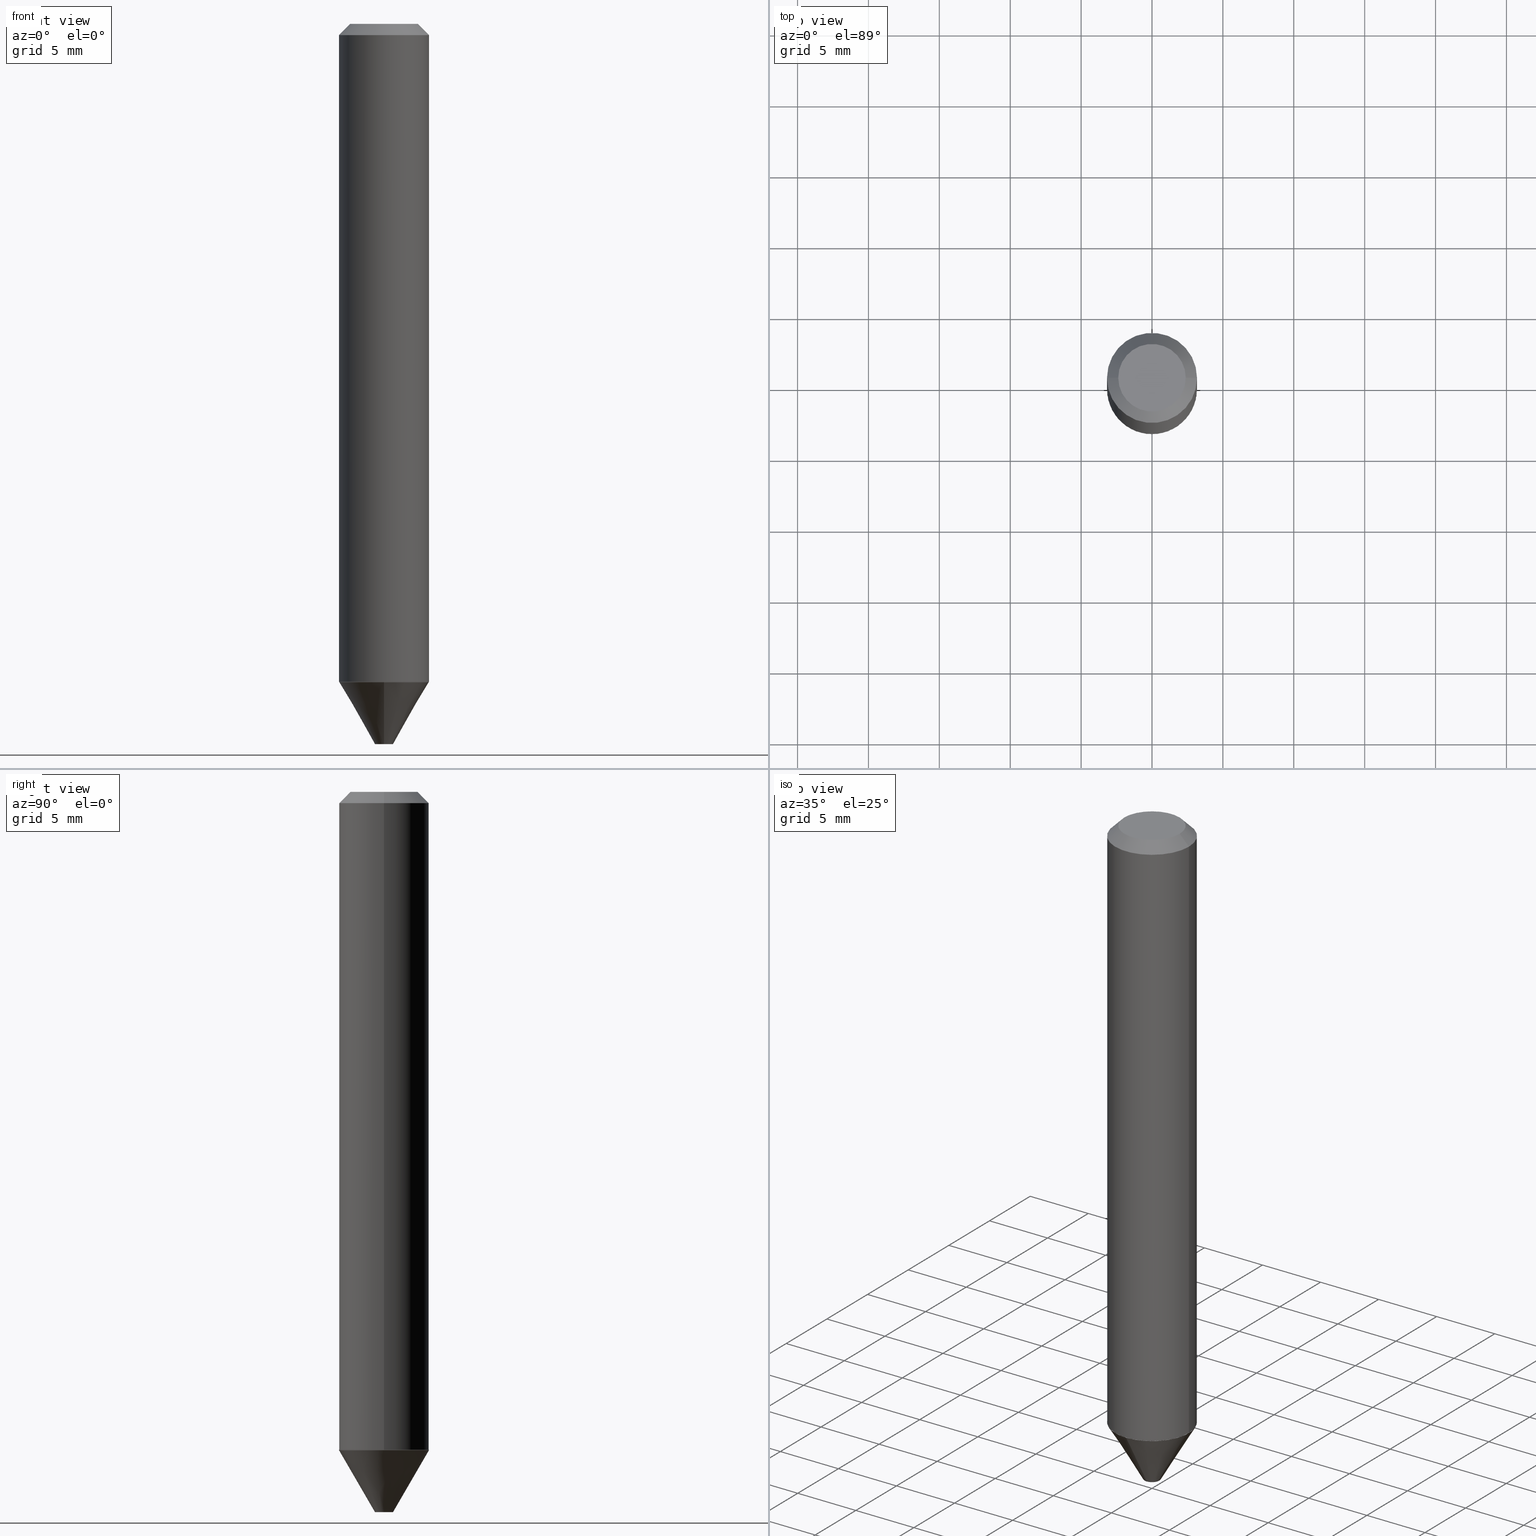
[diagram: canonical four-view strip — front | top / right | iso, engineering-drawing reading convention]
A machine part, canonical four-view strip (front | top / right | iso — engineering-drawing reading convention). The complete STEP part file that produces these views, byte-faithful:
ISO-10303-21;
HEADER;
FILE_DESCRIPTION (( 'STEP AP203' ),
    '1' );
FILE_NAME ('74055.STEP',
    '2025-06-20T12:14:28',
    ( '' ),
    ( '' ),
    'SwSTEP 2.0',
    'SolidWorks 2024',
    '' );
FILE_SCHEMA (( 'CONFIG_CONTROL_DESIGN' ));
ENDSEC;

DATA;
#1 = CARTESIAN_POINT ( 'NONE',  ( 7.642090019328604414E-31, -1.091087918388490513E-16, -0.03125000000000021511 ) ) ;
#2 = VECTOR ( 'NONE', #60, 39.37007874015748143 ) ;
#3 = ADVANCED_FACE ( 'NONE', ( #176 ), #116, .F. ) ;
#4 = EDGE_CURVE ( 'NONE', #135, #43, #40, .T. ) ;
#5 = DIRECTION ( 'NONE',  ( -2.445468806185136597E-29, 3.491481338843145583E-15, 1.000000000000000000 ) ) ;
#6 = EDGE_CURVE ( 'NONE', #268, #169, #108, .T. ) ;
#7 = CONICAL_SURFACE ( 'NONE', #138, 0.1250000000000001665, 0.5261096427181406465 ) ;
#8 = LOCAL_TIME ( 8, 14, 28.00000000000000000, #137 ) ;
#9 = PERSON_AND_ORGANIZATION ( #407, #59 ) ;
#10 = ORIENTED_EDGE ( 'NONE', *, *, #352, .F. ) ;
#11 = DIRECTION ( 'NONE',  ( -2.445468806185136597E-29, 3.491481338843145583E-15, 1.000000000000000000 ) ) ;
#12 = AXIS2_PLACEMENT_3D ( 'NONE', #314, #144, #270 ) ;
#13 = AXIS2_PLACEMENT_3D ( 'NONE', #408, #248, #80 ) ;
#14 = ORIENTED_EDGE ( 'NONE', *, *, #283, .F. ) ;
#15 = ADVANCED_FACE ( 'NONE', ( #405 ), #77, .T. ) ;
#16 = DIRECTION ( 'NONE',  ( -2.445468806185136597E-29, 3.491481338843145583E-15, 1.000000000000000000 ) ) ;
#17 = EDGE_CURVE ( 'NONE', #261, #376, #155, .T. ) ;
#18 = ORIENTED_EDGE ( 'NONE', *, *, #71, .T. ) ;
#19 = APPROVAL_DATE_TIME ( #68, #106 ) ;
#20 = LOCAL_TIME ( 8, 14, 28.00000000000000000, #100 ) ;
#21 = LINE ( 'NONE', #109, #216 ) ;
#22 = CARTESIAN_POINT ( 'NONE',  ( 0.1245000000000002632, -7.249344964472156868E-15, -1.827294919243111160 ) ) ;
#23 = DIRECTION ( 'NONE',  ( 1.000000000000000000, -6.982962677686266711E-15, 4.876176775795935232E-29 ) ) ;
#24 = APPLICATION_CONTEXT ( 'configuration controlled 3d designs of mechanical parts and assemblies' ) ;
#25 = DIRECTION ( 'NONE',  ( 4.937700262164547253E-15, 0.7071067811865450192, -0.7071067811865499042 ) ) ;
#26 = EDGE_CURVE ( 'NONE', #186, #169, #21, .T. ) ;
#27 = DIRECTION ( 'NONE',  ( -2.445468806185136597E-29, 3.491481338843145583E-15, 1.000000000000000000 ) ) ;
#28 = FACE_OUTER_BOUND ( 'NONE', #209, .T. ) ;
#29 = CIRCLE ( 'NONE', #372, 0.1244999999999999996 ) ;
#30 = CARTESIAN_POINT ( 'NONE',  ( 4.468592724709616845E-29, -6.379966111100216537E-15, -1.827294919243111382 ) ) ;
#31 = DIRECTION ( 'NONE',  ( 0.000000000000000000, 0.000000000000000000, 1.000000000000000000 ) ) ;
#32 = EDGE_CURVE ( 'NONE', #184, #198, #354, .T. ) ;
#33 = DIRECTION ( 'NONE',  ( 2.438655808620039328E-29, -3.501237939128104432E-15, -1.000000000000000000 ) ) ;
#34 = CONICAL_SURFACE ( 'NONE', #201, 0.1250000000000001665, 0.5261096427181406465 ) ;
#35 =( CONVERSION_BASED_UNIT ( 'INCH', #326 ) LENGTH_UNIT ( ) NAMED_UNIT ( #112 ) );
#36 = CARTESIAN_POINT ( 'NONE',  ( 0.1250000000000000000, -9.666710415602905459E-16, -0.03125000000000021511 ) ) ;
#37 = CC_DESIGN_PERSON_AND_ORGANIZATION_ASSIGNMENT ( #368, #172, ( #394 ) ) ;
#38 =( NAMED_UNIT ( * ) PLANE_ANGLE_UNIT ( ) SI_UNIT ( $, .RADIAN. ) );
#39 = PRODUCT_DEFINITION_SHAPE ( 'NONE', 'NONE',  #394 ) ;
#40 = CIRCLE ( 'NONE', #12, 0.1244999999999999996 ) ;
#41 = APPROVAL_STATUS ( 'not_yet_approved' ) ;
#42 = ADVANCED_FACE ( 'NONE', ( #49 ), #223, .T. ) ;
#43 = VERTEX_POINT ( 'NONE', #82 ) ;
#44 = DATE_TIME_ROLE ( 'creation_date' ) ;
#45 = ORIENTED_EDGE ( 'NONE', *, *, #211, .T. ) ;
#46 = EDGE_CURVE ( 'NONE', #198, #186, #146, .T. ) ;
#47 = DIRECTION ( 'NONE',  ( -2.438655808620039047E-29, 3.501237939128104827E-15, 1.000000000000000000 ) ) ;
#48 = ADVANCED_FACE ( 'NONE', ( #371 ), #7, .T. ) ;
#49 = FACE_OUTER_BOUND ( 'NONE', #235, .T. ) ;
#50 = CARTESIAN_POINT ( 'NONE',  ( 8.693788533719847051E-16, 0.1244999999999936158, -1.827294919243111826 ) ) ;
#51 = VERTEX_POINT ( 'NONE', #412 ) ;
#52 = DIRECTION ( 'NONE',  ( 1.000000000000000000, -6.982962677686266711E-15, 4.875989565238656407E-29 ) ) ;
#53 = APPROVAL_ROLE ( '' ) ;
#54 = ORIENTED_EDGE ( 'NONE', *, *, #32, .F. ) ;
#55 = DIRECTION ( 'NONE',  ( -6.982962677686265922E-15, -1.000000000000000000, 4.370956789862815627E-15 ) ) ;
#56 = DIRECTION ( 'NONE',  ( 1.000000000000000000, -6.982962677686266711E-15, 0.000000000000000000 ) ) ;
#57 = FACE_OUTER_BOUND ( 'NONE', #275, .T. ) ;
#58 = DIRECTION ( 'NONE',  ( 6.982962677686265133E-15, 1.000000000000000000, -4.388510833195603583E-15 ) ) ;
#59 = ORGANIZATION ( 'UNSPECIFIED', 'UNSPECIFIED', '' ) ;
#60 = DIRECTION ( 'NONE',  ( 0.7071067811865451302, -7.319954787623248157E-15, -0.7071067811865499042 ) ) ;
#61 = CARTESIAN_POINT ( 'NONE',  ( -0.1250000000000000000, 7.637615428719342382E-16, -0.03125000000000021511 ) ) ;
#62 = CARTESIAN_POINT ( 'NONE',  ( -5.237222008264237563E-16, -0.02500000000000698885, -2.000000000000000000 ) ) ;
#63 = AXIS2_PLACEMENT_3D ( 'NONE', #244, #338, #113 ) ;
#64 = AXIS2_PLACEMENT_3D ( 'NONE', #87, #249, #280 ) ;
#65 = PRODUCT_DEFINITION_FORMATION_WITH_SPECIFIED_SOURCE ( 'ANY', '', #367, .NOT_KNOWN. ) ;
#66 = CARTESIAN_POINT ( 'NONE',  ( 4.889760973075596555E-29, -6.984647692126417987E-15, -2.000000000000000000 ) ) ;
#67 = ORIENTED_EDGE ( 'NONE', *, *, #71, .F. ) ;
#68 = DATE_AND_TIME ( #197, #406 ) ;
#69 = ORIENTED_EDGE ( 'NONE', *, *, #283, .T. ) ;
#70 = DATE_AND_TIME ( #309, #76 ) ;
#71 = EDGE_CURVE ( 'NONE', #402, #186, #228, .T. ) ;
#72 = EDGE_LOOP ( 'NONE', ( #18, #101, #331, #208 ) ) ;
#73 = CALENDAR_DATE ( 2025, 20, 6 ) ;
#74 = ORIENTED_EDGE ( 'NONE', *, *, #46, .T. ) ;
#75 = EDGE_LOOP ( 'NONE', ( #14, #180, #241, #297 ) ) ;
#76 = LOCAL_TIME ( 8, 14, 28.00000000000000000, #395 ) ;
#77 = CYLINDRICAL_SURFACE ( 'NONE', #181, 0.1250000000000001110 ) ;
#78 = LINE ( 'NONE', #278, #336 ) ;
#79 = ORIENTED_EDGE ( 'NONE', *, *, #378, .T. ) ;
#80 = DIRECTION ( 'NONE',  ( -6.982962677686265922E-15, -1.000000000000000000, 3.501237939128104827E-15 ) ) ;
#81 = PERSON_AND_ORGANIZATION ( #407, #59 ) ;
#82 = CARTESIAN_POINT ( 'NONE',  ( -8.558471252219543168E-16, -0.1245000000000063833, -1.827294919243110716 ) ) ;
#83 = DIRECTION ( 'NONE',  ( -1.000000000000000000, 6.982962677686265922E-15, -4.876176775795935793E-29 ) ) ;
#84 = AXIS2_PLACEMENT_3D ( 'NONE', #358, #390, #131 ) ;
#85 = DIRECTION ( 'NONE',  ( -1.000000000000000000, 6.982962677686266711E-15, 0.000000000000000000 ) ) ;
#86 = DIRECTION ( 'NONE',  ( 6.982962677686265922E-15, 1.000000000000000000, -4.370956789862815627E-15 ) ) ;
#87 = CARTESIAN_POINT ( 'NONE',  ( 4.467369990306524043E-29, -6.378220370430793455E-15, -1.826794919243111215 ) ) ;
#88 = CARTESIAN_POINT ( 'NONE',  ( 8.693788533719847051E-16, 0.1244999999999936158, -1.827294919243111826 ) ) ;
#89 = CC_DESIGN_PERSON_AND_ORGANIZATION_ASSIGNMENT ( #148, #243, ( #65 ) ) ;
#90 = CARTESIAN_POINT ( 'NONE',  ( -8.541320007225108714E-16, -0.1245000000000063833, -1.827294919243110716 ) ) ;
#91 = DIRECTION ( 'NONE',  ( -2.445468806185136597E-29, 3.491481338843145583E-15, 1.000000000000000000 ) ) ;
#92 = DIRECTION ( 'NONE',  ( 1.000000000000000000, -6.982962677686266711E-15, 0.000000000000000000 ) ) ;
#93 = LINE ( 'NONE', #36, #2 ) ;
#94 = AXIS2_PLACEMENT_3D ( 'NONE', #317, #319, #52 ) ;
#95 = DIRECTION ( 'NONE',  ( 1.000000000000000000, -6.982962677686267499E-15, 0.000000000000000000 ) ) ;
#96 = EDGE_LOOP ( 'NONE', ( #231, #167, #341, #361 ) ) ;
#97 = VECTOR ( 'NONE', #322, 39.37007874015748143 ) ;
#98 = ORIENTED_EDGE ( 'NONE', *, *, #334, .T. ) ;
#99 = DIRECTION ( 'NONE',  ( 2.438088387897960049E-29, -3.491481338843145188E-15, -1.000000000000000000 ) ) ;
#100 = COORDINATED_UNIVERSAL_TIME_OFFSET ( 5, 0, .BEHIND. ) ;
#101 = ORIENTED_EDGE ( 'NONE', *, *, #26, .T. ) ;
#102 = CC_DESIGN_PERSON_AND_ORGANIZATION_ASSIGNMENT ( #114, #377, ( #258 ) ) ;
#103 = ORIENTED_EDGE ( 'NONE', *, *, #399, .T. ) ;
#104 = VECTOR ( 'NONE', #360, 39.37007874015748854 ) ;
#105 = APPROVAL_STATUS ( 'not_yet_approved' ) ;
#106 = APPROVAL ( #105, 'UNSPECIFIED' ) ;
#107 = EDGE_LOOP ( 'NONE', ( #236, #333 ) ) ;
#108 = CIRCLE ( 'NONE', #413, 0.1250000000000000000 ) ;
#109 = CARTESIAN_POINT ( 'NONE',  ( -0.1250000000000001110, 8.881784197001260212E-16, -6.148668862818637832E-30 ) ) ;
#110 = LINE ( 'NONE', #187, #335 ) ;
#111 = CONICAL_SURFACE ( 'NONE', #234, 0.1244999999999999996, 0.7853981633974482790 ) ;
#112 = DIMENSIONAL_EXPONENTS ( 1.000000000000000000, 0.000000000000000000, 0.000000000000000000, 0.000000000000000000, 0.000000000000000000, 0.000000000000000000, 0.000000000000000000 ) ;
#113 = DIRECTION ( 'NONE',  ( 1.000000000000000000, -6.982962677686267499E-15, 0.000000000000000000 ) ) ;
#114 = PERSON_AND_ORGANIZATION ( #407, #59 ) ;
#115 = ADVANCED_FACE ( 'NONE', ( #124 ), #247, .T. ) ;
#116 = PLANE ( 'NONE',  #300 ) ;
#117 = LINE ( 'NONE', #50, #392 ) ;
#118 = EDGE_CURVE ( 'NONE', #51, #133, #301, .T. ) ;
#119 = DIRECTION ( 'NONE',  ( -6.982962677686265922E-15, -1.000000000000000000, 3.501237939128104827E-15 ) ) ;
#120 = AXIS2_PLACEMENT_3D ( 'NONE', #149, #177, #85 ) ;
#121 = DIRECTION ( 'NONE',  ( 3.568153035714514369E-15, 0.5021728963139058255, 0.8647672416365590475 ) ) ;
#122 = AXIS2_PLACEMENT_3D ( 'NONE', #384, #416, #86 ) ;
#123 = APPROVAL_PERSON_ORGANIZATION ( #274, #166, #260 ) ;
#124 = FACE_OUTER_BOUND ( 'NONE', #96, .T. ) ;
#125 = CARTESIAN_POINT ( 'NONE',  ( -0.1250000000000000000, -2.355486161434694468E-15, -0.03125000000000021511 ) ) ;
#126 = EDGE_CURVE ( 'NONE', #366, #246, #140, .T. ) ;
#127 =( LENGTH_UNIT ( ) NAMED_UNIT ( * ) SI_UNIT ( $, .METRE. ) );
#128 = AXIS2_PLACEMENT_3D ( 'NONE', #282, #210, #150 ) ;
#129 = PLANE ( 'NONE',  #404 ) ;
#130 = ADVANCED_FACE ( 'NONE', ( #147 ), #245, .T. ) ;
#131 = DIRECTION ( 'NONE',  ( 6.982962677686265922E-15, 1.000000000000000000, -4.370956789862815627E-15 ) ) ;
#132 = FACE_OUTER_BOUND ( 'NONE', #107, .T. ) ;
#133 = VERTEX_POINT ( 'NONE', #403 ) ;
#134 = DESIGN_CONTEXT ( 'detailed design', #191, 'design' ) ;
#135 = VERTEX_POINT ( 'NONE', #88 ) ;
#136 = ORIENTED_EDGE ( 'NONE', *, *, #118, .T. ) ;
#137 = COORDINATED_UNIVERSAL_TIME_OFFSET ( 5, 0, .BEHIND. ) ;
#138 = AXIS2_PLACEMENT_3D ( 'NONE', #272, #152, #277 ) ;
#139 = EDGE_LOOP ( 'NONE', ( #370, #69, #136, #171 ) ) ;
#140 = CIRCLE ( 'NONE', #94, 0.09374999999999998612 ) ;
#141 = EDGE_CURVE ( 'NONE', #376, #133, #110, .T. ) ;
#142 = MANIFOLD_SOLID_BREP ( 'Body-Move/Copy2[1]', #194 ) ;
#143 = ORIENTED_EDGE ( 'NONE', *, *, #4, .F. ) ;
#144 = DIRECTION ( 'NONE',  ( 2.438655808620039328E-29, -3.501237939128104432E-15, -1.000000000000000000 ) ) ;
#145 = MANIFOLD_SOLID_BREP ( 'Body-Move/Copy2[2]', #307 ) ;
#146 = LINE ( 'NONE', #410, #318 ) ;
#147 = FACE_OUTER_BOUND ( 'NONE', #302, .T. ) ;
#148 = PERSON_AND_ORGANIZATION ( #407, #59 ) ;
#149 = CARTESIAN_POINT ( 'NONE',  ( 7.642090019328604414E-31, -1.091087918388490513E-16, -0.03125000000000021511 ) ) ;
#150 = DIRECTION ( 'NONE',  ( 1.000000000000000000, -6.982962677686267499E-15, 0.000000000000000000 ) ) ;
#151 = APPROVAL_STATUS ( 'not_yet_approved' ) ;
#152 = DIRECTION ( 'NONE',  ( -2.438655808620039328E-29, 3.501237939128104432E-15, 1.000000000000000000 ) ) ;
#153 = DIRECTION ( 'NONE',  ( -2.445468806185136877E-29, 3.491481338843145188E-15, 1.000000000000000000 ) ) ;
#154 = DIRECTION ( 'NONE',  ( 1.000000000000000000, -6.982962677686267499E-15, 0.000000000000000000 ) ) ;
#155 = CIRCLE ( 'NONE', #257, 0.02500000000000000486 ) ;
#156 = CONICAL_SURFACE ( 'NONE', #387, 0.1250000000000000000, 0.7853981633974449483 ) ;
#157 = CARTESIAN_POINT ( 'NONE',  ( -0.1245000000000002632, -5.492691177904777846E-15, -1.827294919243111160 ) ) ;
#158 = ADVANCED_FACE ( 'NONE', ( #28 ), #156, .T. ) ;
#159 =( NAMED_UNIT ( * ) SI_UNIT ( $, .STERADIAN. ) SOLID_ANGLE_UNIT ( ) );
#160 = ADVANCED_FACE ( 'NONE', ( #276 ), #34, .T. ) ;
#161 = CIRCLE ( 'NONE', #224, 0.1250000000000000000 ) ;
#162 = DIRECTION ( 'NONE',  ( 6.982962677686265133E-15, 1.000000000000000000, -4.388510833195603583E-15 ) ) ;
#163 = CARTESIAN_POINT ( 'NONE',  ( -9.358861080966640236E-47, 1.336197326842803670E-32, 3.827021247335477232E-18 ) ) ;
#164 = DIRECTION ( 'NONE',  ( 6.982962677686266711E-15, 1.000000000000000000, 0.000000000000000000 ) ) ;
#165 = ORIENTED_EDGE ( 'NONE', *, *, #334, .F. ) ;
#166 = APPROVAL ( #151, 'UNSPECIFIED' ) ;
#167 = ORIENTED_EDGE ( 'NONE', *, *, #267, .T. ) ;
#168 = AXIS2_PLACEMENT_3D ( 'NONE', #342, #220, #286 ) ;
#169 = VERTEX_POINT ( 'NONE', #125 ) ;
#170 = CALENDAR_DATE ( 2025, 20, 6 ) ;
#171 = ORIENTED_EDGE ( 'NONE', *, *, #141, .F. ) ;
#172 = PERSON_AND_ORGANIZATION_ROLE ( 'creator' ) ;
#173 = ORIENTED_EDGE ( 'NONE', *, *, #4, .T. ) ;
#174 = VECTOR ( 'NONE', #121, 39.37007874015748854 ) ;
#175 = AXIS2_PLACEMENT_3D ( 'NONE', #411, #380, #83 ) ;
#176 = FACE_OUTER_BOUND ( 'NONE', #305, .T. ) ;
#177 = DIRECTION ( 'NONE',  ( 2.445468806185136597E-29, -3.491481338843145583E-15, -1.000000000000000000 ) ) ;
#178 = CARTESIAN_POINT ( 'NONE',  ( 8.881784197001709863E-16, 0.1249999999999937828, -1.827794919243111993 ) ) ;
#179 = CC_DESIGN_PERSON_AND_ORGANIZATION_ASSIGNMENT ( #9, #264, ( #65 ) ) ;
#180 = ORIENTED_EDGE ( 'NONE', *, *, #378, .F. ) ;
#181 = AXIS2_PLACEMENT_3D ( 'NONE', #310, #349, #23 ) ;
#182 = LINE ( 'NONE', #178, #174 ) ;
#183 = DATE_AND_TIME ( #296, #20 ) ;
#184 = VERTEX_POINT ( 'NONE', #22 ) ;
#185 = CARTESIAN_POINT ( 'NONE',  ( -0.1250000000000001943, -5.490041950730667434E-15, -1.826794919243111215 ) ) ;
#186 = VERTEX_POINT ( 'NONE', #185 ) ;
#187 = CARTESIAN_POINT ( 'NONE',  ( -8.728703347107397543E-16, -0.1250000000000065503, -1.827794919243110883 ) ) ;
#188 = ADVANCED_FACE ( 'NONE', ( #57 ), #315, .T. ) ;
#189 = FACE_OUTER_BOUND ( 'NONE', #363, .T. ) ;
#190 = LINE ( 'NONE', #61, #97 ) ;
#191 = APPLICATION_CONTEXT ( 'configuration controlled 3d designs of mechanical parts and assemblies' ) ;
#192 = APPLICATION_PROTOCOL_DEFINITION ( 'international standard', 'config_control_design', 1994, #24 ) ;
#193 = FACE_OUTER_BOUND ( 'NONE', #345, .T. ) ;
#194 = CLOSED_SHELL ( 'NONE', ( #48, #415, #269, #293, #3, #160 ) ) ;
#195 = CARTESIAN_POINT ( 'NONE',  ( 0.1250000000000001943, -7.251090705141579161E-15, -1.826794919243111215 ) ) ;
#196 = EDGE_CURVE ( 'NONE', #135, #51, #117, .T. ) ;
#197 = CALENDAR_DATE ( 2025, 20, 6 ) ;
#198 = VERTEX_POINT ( 'NONE', #157 ) ;
#199 = DIRECTION ( 'NONE',  ( -1.000000000000000000, 6.982962677686265922E-15, -4.876176775795935793E-29 ) ) ;
#200 = PRODUCT_RELATED_PRODUCT_CATEGORY ( 'detail', '', ( #367 ) ) ;
#201 = AXIS2_PLACEMENT_3D ( 'NONE', #218, #221, #55 ) ;
#202 = DATE_AND_TIME ( #73, #388 ) ;
#203 = ORIENTED_EDGE ( 'NONE', *, *, #267, .F. ) ;
#204 = APPLICATION_PROTOCOL_DEFINITION ( 'international standard', 'config_control_design', 1994, #191 ) ;
#205 = ORIENTED_EDGE ( 'NONE', *, *, #252, .T. ) ;
#206 = APPROVAL_ROLE ( '' ) ;
#207 = ORIENTED_EDGE ( 'NONE', *, *, #211, .F. ) ;
#208 = ORIENTED_EDGE ( 'NONE', *, *, #252, .F. ) ;
#209 = EDGE_LOOP ( 'NONE', ( #299, #337, #103, #98 ) ) ;
#210 = DIRECTION ( 'NONE',  ( -2.445468806185136597E-29, 3.491481338843145583E-15, 1.000000000000000000 ) ) ;
#211 = EDGE_CURVE ( 'NONE', #43, #135, #29, .T. ) ;
#212 = ORIENTED_EDGE ( 'NONE', *, *, #6, .T. ) ;
#213 = FACE_OUTER_BOUND ( 'NONE', #289, .T. ) ;
#214 = DATE_TIME_ROLE ( 'classification_date' ) ;
#215 = ORIENTED_EDGE ( 'NONE', *, *, #196, .F. ) ;
#216 = VECTOR ( 'NONE', #238, 39.37007874015748143 ) ;
#217 = AXIS2_PLACEMENT_3D ( 'NONE', #389, #5, #95 ) ;
#218 = CARTESIAN_POINT ( 'NONE',  ( 4.469812052613927937E-29, -6.381716730069780750E-15, -1.827794919243111549 ) ) ;
#219 = CARTESIAN_POINT ( 'NONE',  ( 4.467369990306524043E-29, -6.378220370430793455E-15, -1.826794919243111215 ) ) ;
#220 = DIRECTION ( 'NONE',  ( -2.445468806185136597E-29, 3.491481338843145583E-15, 1.000000000000000000 ) ) ;
#221 = DIRECTION ( 'NONE',  ( -2.438655808620039328E-29, 3.501237939128104432E-15, 1.000000000000000000 ) ) ;
#222 = LINE ( 'NONE', #255, #104 ) ;
#223 = CONICAL_SURFACE ( 'NONE', #120, 0.1250000000000000000, 0.7853981633974449483 ) ;
#224 = AXIS2_PLACEMENT_3D ( 'NONE', #295, #11, #92 ) ;
#225 = AXIS2_PLACEMENT_3D ( 'NONE', #357, #353, #162 ) ;
#226 = APPROVAL ( #41, 'UNSPECIFIED' ) ;
#227 = CIRCLE ( 'NONE', #84, 0.1250000000000001665 ) ;
#228 = CIRCLE ( 'NONE', #279, 0.1250000000000001943 ) ;
#229 = CARTESIAN_POINT ( 'NONE',  ( -0.09374999999999998612, 7.092071469525108711E-16, 3.827021247330707859E-18 ) ) ;
#230 = AXIS2_PLACEMENT_3D ( 'NONE', #323, #31, #284 ) ;
#231 = ORIENTED_EDGE ( 'NONE', *, *, #46, .F. ) ;
#232 = EDGE_LOOP ( 'NONE', ( #143, #207 ) ) ;
#233 = PERSON_AND_ORGANIZATION ( #407, #59 ) ;
#234 = AXIS2_PLACEMENT_3D ( 'NONE', #30, #414, #271 ) ;
#235 = EDGE_LOOP ( 'NONE', ( #396, #365, #212, #330 ) ) ;
#236 = ORIENTED_EDGE ( 'NONE', *, *, #126, .T. ) ;
#237 = DIRECTION ( 'NONE',  ( 2.438655808620039328E-29, -3.501237939128104432E-15, -1.000000000000000000 ) ) ;
#238 = DIRECTION ( 'NONE',  ( -2.445468806185136877E-29, 3.491481338843145188E-15, 1.000000000000000000 ) ) ;
#239 = CC_DESIGN_DATE_AND_TIME_ASSIGNMENT ( #70, #44, ( #394 ) ) ;
#240 = DIRECTION ( 'NONE',  ( -3.506654592705619215E-15, -0.5021728963138998303, 0.8647672416365624892 ) ) ;
#241 = ORIENTED_EDGE ( 'NONE', *, *, #141, .T. ) ;
#242 = CARTESIAN_POINT ( 'NONE',  ( 4.468592724709616845E-29, -6.379966111100216537E-15, -1.827294919243111382 ) ) ;
#243 = PERSON_AND_ORGANIZATION_ROLE ( 'design_supplier' ) ;
#244 = CARTESIAN_POINT ( 'NONE',  ( 4.468592724709616284E-29, -6.379966111100214959E-15, -1.827294919243111160 ) ) ;
#245 = PLANE ( 'NONE',  #175 ) ;
#246 = VERTEX_POINT ( 'NONE', #383 ) ;
#247 = CONICAL_SURFACE ( 'NONE', #64, 0.1250000000000001943, 0.7853981633974824739 ) ;
#248 = DIRECTION ( 'NONE',  ( -2.438655808620039047E-29, 3.501237939128104827E-15, 1.000000000000000000 ) ) ;
#249 = DIRECTION ( 'NONE',  ( -2.445468806185136597E-29, 3.491481338843145583E-15, 1.000000000000000000 ) ) ;
#250 = DIRECTION ( 'NONE',  ( 2.438655808620039328E-29, -3.501237939128104432E-15, -1.000000000000000000 ) ) ;
#251 = UNCERTAINTY_MEASURE_WITH_UNIT (LENGTH_MEASURE( 1.000000000000000082E-05 ), #35, 'distance_accuracy_value', 'NONE');
#252 = EDGE_CURVE ( 'NONE', #402, #268, #78, .T. ) ;
#253 = MECHANICAL_CONTEXT ( 'NONE', #24, 'mechanical' ) ;
#254 = CARTESIAN_POINT ( 'NONE',  ( -4.679430540483320118E-47, 6.680986634214018350E-33, 1.913510623667738616E-18 ) ) ;
#255 = CARTESIAN_POINT ( 'NONE',  ( 0.1250000000000001943, -7.251090705141579161E-15, -1.826794919243111215 ) ) ;
#256 = AXIS2_PLACEMENT_3D ( 'NONE', #351, #374, #312 ) ;
#257 = AXIS2_PLACEMENT_3D ( 'NONE', #379, #237, #316 ) ;
#258 = SECURITY_CLASSIFICATION ( '', '', #409 ) ;
#259 = ORIENTED_EDGE ( 'NONE', *, *, #32, .T. ) ;
#260 = APPROVAL_ROLE ( '' ) ;
#261 = VERTEX_POINT ( 'NONE', #339 ) ;
#262 = COORDINATED_UNIVERSAL_TIME_OFFSET ( 5, 0, .BEHIND. ) ;
#263 = ORIENTED_EDGE ( 'NONE', *, *, #352, .T. ) ;
#264 = PERSON_AND_ORGANIZATION_ROLE ( 'creator' ) ;
#265 = CIRCLE ( 'NONE', #281, 0.02500000000000000486 ) ;
#266 = ORIENTED_EDGE ( 'NONE', *, *, #375, .T. ) ;
#267 = EDGE_CURVE ( 'NONE', #198, #184, #290, .T. ) ;
#268 = VERTEX_POINT ( 'NONE', #385 ) ;
#269 = ADVANCED_FACE ( 'NONE', ( #189 ), #111, .T. ) ;
#270 = DIRECTION ( 'NONE',  ( 6.982962677686265133E-15, 1.000000000000000000, -4.388510833195603583E-15 ) ) ;
#271 = DIRECTION ( 'NONE',  ( 6.982962677686265133E-15, 1.000000000000000000, -4.388510833195603583E-15 ) ) ;
#272 = CARTESIAN_POINT ( 'NONE',  ( 4.469812052613927937E-29, -6.381716730069780750E-15, -1.827794919243111549 ) ) ;
#273 = PLANE ( 'NONE',  #13 ) ;
#274 = PERSON_AND_ORGANIZATION ( #407, #59 ) ;
#275 = EDGE_LOOP ( 'NONE', ( #327, #266, #205, #165 ) ) ;
#276 = FACE_OUTER_BOUND ( 'NONE', #75, .T. ) ;
#277 = DIRECTION ( 'NONE',  ( -6.982962677686265922E-15, -1.000000000000000000, 4.370956789862815627E-15 ) ) ;
#278 = CARTESIAN_POINT ( 'NONE',  ( 0.1250000000000001110, -8.728703347107841277E-16, 6.095220969744924646E-30 ) ) ;
#279 = AXIS2_PLACEMENT_3D ( 'NONE', #219, #27, #154 ) ;
#280 = DIRECTION ( 'NONE',  ( 1.000000000000000000, -6.982962677686267499E-15, 0.000000000000000000 ) ) ;
#281 = AXIS2_PLACEMENT_3D ( 'NONE', #66, #33, #164 ) ;
#282 = CARTESIAN_POINT ( 'NONE',  ( 4.468592724709616284E-29, -6.379966111100214959E-15, -1.827294919243111160 ) ) ;
#283 = EDGE_CURVE ( 'NONE', #261, #51, #182, .T. ) ;
#284 = DIRECTION ( 'NONE',  ( 1.000000000000000000, 0.000000000000000000, 0.000000000000000000 ) ) ;
#285 = APPROVAL_PERSON_ORGANIZATION ( #233, #226, #53 ) ;
#286 = DIRECTION ( 'NONE',  ( 1.000000000000000000, -6.982962677686267499E-15, 0.000000000000000000 ) ) ;
#287 = LINE ( 'NONE', #90, #346 ) ;
#288 = DIRECTION ( 'NONE',  ( 1.000000000000000000, -6.982962677686266711E-15, 4.875989565238656407E-29 ) ) ;
#289 = EDGE_LOOP ( 'NONE', ( #259, #74, #67, #393 ) ) ;
#290 = CIRCLE ( 'NONE', #128, 0.1245000000000002632 ) ;
#291 = DATE_AND_TIME ( #170, #8 ) ;
#292 = CC_DESIGN_SECURITY_CLASSIFICATION ( #258, ( #65 ) ) ;
#293 = ADVANCED_FACE ( 'NONE', ( #308 ), #273, .T. ) ;
#294 = ORIENTED_EDGE ( 'NONE', *, *, #17, .T. ) ;
#295 = CARTESIAN_POINT ( 'NONE',  ( 7.642090019328604414E-31, -1.091087918388490513E-16, -0.03125000000000021511 ) ) ;
#296 = CALENDAR_DATE ( 2025, 20, 6 ) ;
#297 = ORIENTED_EDGE ( 'NONE', *, *, #340, .T. ) ;
#298 = CC_DESIGN_DATE_AND_TIME_ASSIGNMENT ( #291, #214, ( #258 ) ) ;
#299 = ORIENTED_EDGE ( 'NONE', *, *, #321, .F. ) ;
#300 = AXIS2_PLACEMENT_3D ( 'NONE', #401, #47, #119 ) ;
#301 = CIRCLE ( 'NONE', #122, 0.1250000000000001665 ) ;
#302 = EDGE_LOOP ( 'NONE', ( #54, #203 ) ) ;
#303 = APPROVAL_PERSON_ORGANIZATION ( #362, #106, #206 ) ;
#304 = ADVANCED_FACE ( 'NONE', ( #213 ), #355, .T. ) ;
#305 = EDGE_LOOP ( 'NONE', ( #79, #294 ) ) ;
#306 = DIRECTION ( 'NONE',  ( -0.7071067811865715536, 7.493145998870439357E-15, 0.7071067811865232589 ) ) ;
#307 = CLOSED_SHELL ( 'NONE', ( #42, #15, #304, #130, #115, #188, #158, #324 ) ) ;
#308 = FACE_OUTER_BOUND ( 'NONE', #232, .T. ) ;
#309 = CALENDAR_DATE ( 2025, 20, 6 ) ;
#310 = CARTESIAN_POINT ( 'NONE',  ( 0.000000000000000000, 0.000000000000000000, 0.000000000000000000 ) ) ;
#311 =( GEOMETRIC_REPRESENTATION_CONTEXT ( 3 ) GLOBAL_UNCERTAINTY_ASSIGNED_CONTEXT ( ( #251 ) ) GLOBAL_UNIT_ASSIGNED_CONTEXT ( ( #35, #38, #159 ) ) REPRESENTATION_CONTEXT ( 'NONE', 'WORKASPACE' ) );
#312 = DIRECTION ( 'NONE',  ( 1.000000000000000000, -6.982962677686266711E-15, 4.876176775795935232E-29 ) ) ;
#313 = SHAPE_DEFINITION_REPRESENTATION ( #39, #329 ) ;
#314 = CARTESIAN_POINT ( 'NONE',  ( 4.468592724709616845E-29, -6.379966111100216537E-15, -1.827294919243111382 ) ) ;
#315 = CYLINDRICAL_SURFACE ( 'NONE', #256, 0.1250000000000001110 ) ;
#316 = DIRECTION ( 'NONE',  ( 6.982962677686266711E-15, 1.000000000000000000, 0.000000000000000000 ) ) ;
#317 = CARTESIAN_POINT ( 'NONE',  ( -9.358861080966640236E-47, 1.336197326842803670E-32, 3.827021247335477232E-18 ) ) ;
#318 = VECTOR ( 'NONE', #306, 39.37007874015748854 ) ;
#319 = DIRECTION ( 'NONE',  ( -2.445468806185136597E-29, 3.491481338843145583E-15, 1.000000000000000000 ) ) ;
#320 = CC_DESIGN_APPROVAL ( #226, ( #258 ) ) ;
#321 = EDGE_CURVE ( 'NONE', #246, #268, #93, .T. ) ;
#322 = DIRECTION ( 'NONE',  ( -0.7071067811865451302, 2.468850131082231817E-15, -0.7071067811865499042 ) ) ;
#323 = CARTESIAN_POINT ( 'NONE',  ( 0.000000000000000000, 0.000000000000000000, 0.000000000000000000 ) ) ;
#324 = ADVANCED_FACE ( 'NONE', ( #132 ), #129, .F. ) ;
#325 = CIRCLE ( 'NONE', #382, 0.09374999999999998612 ) ;
#326 = LENGTH_MEASURE_WITH_UNIT ( LENGTH_MEASURE( 0.02539999999999999897 ), #127 );
#327 = ORIENTED_EDGE ( 'NONE', *, *, #26, .F. ) ;
#328 = COORDINATED_UNIVERSAL_TIME_OFFSET ( 5, 0, .BEHIND. ) ;
#329 = ADVANCED_BREP_SHAPE_REPRESENTATION ( '74055', ( #142, #145, #230 ), #311 ) ;
#330 = ORIENTED_EDGE ( 'NONE', *, *, #399, .F. ) ;
#331 = ORIENTED_EDGE ( 'NONE', *, *, #6, .F. ) ;
#332 = APPROVAL_DATE_TIME ( #183, #226 ) ;
#333 = ORIENTED_EDGE ( 'NONE', *, *, #391, .T. ) ;
#334 = EDGE_CURVE ( 'NONE', #169, #268, #161, .T. ) ;
#335 = VECTOR ( 'NONE', #240, 39.37007874015748854 ) ;
#336 = VECTOR ( 'NONE', #153, 39.37007874015748143 ) ;
#337 = ORIENTED_EDGE ( 'NONE', *, *, #126, .F. ) ;
#338 = DIRECTION ( 'NONE',  ( -2.445468806185136597E-29, 3.491481338843145583E-15, 1.000000000000000000 ) ) ;
#339 = CARTESIAN_POINT ( 'NONE',  ( 5.329070518201224513E-16, 0.02499999999999302433, -2.000000000000000000 ) ) ;
#340 = EDGE_CURVE ( 'NONE', #133, #51, #227, .T. ) ;
#341 = ORIENTED_EDGE ( 'NONE', *, *, #344, .T. ) ;
#342 = CARTESIAN_POINT ( 'NONE',  ( 4.467369990306524043E-29, -6.378220370430793455E-15, -1.826794919243111215 ) ) ;
#343 = PERSON_AND_ORGANIZATION_ROLE ( 'design_owner' ) ;
#344 = EDGE_CURVE ( 'NONE', #184, #402, #222, .T. ) ;
#345 = EDGE_LOOP ( 'NONE', ( #173, #263, #400, #215 ) ) ;
#346 = VECTOR ( 'NONE', #386, 39.37007874015748854 ) ;
#347 = CC_DESIGN_APPROVAL ( #106, ( #394 ) ) ;
#348 = DIRECTION ( 'NONE',  ( 2.445468806185136597E-29, -3.491481338843145583E-15, -1.000000000000000000 ) ) ;
#349 = DIRECTION ( 'NONE',  ( -2.445468806185136597E-29, 3.491481338843145583E-15, 1.000000000000000000 ) ) ;
#350 = DIRECTION ( 'NONE',  ( -1.000000000000000000, 6.982962677686266711E-15, 0.000000000000000000 ) ) ;
#351 = CARTESIAN_POINT ( 'NONE',  ( 0.000000000000000000, 0.000000000000000000, 0.000000000000000000 ) ) ;
#352 = EDGE_CURVE ( 'NONE', #43, #133, #287, .T. ) ;
#353 = DIRECTION ( 'NONE',  ( 2.438655808620039328E-29, -3.501237939128104432E-15, -1.000000000000000000 ) ) ;
#354 = CIRCLE ( 'NONE', #63, 0.1245000000000002632 ) ;
#355 = CONICAL_SURFACE ( 'NONE', #168, 0.1250000000000001943, 0.7853981633974824739 ) ;
#356 = CONICAL_SURFACE ( 'NONE', #225, 0.1244999999999999996, 0.7853981633974482790 ) ;
#357 = CARTESIAN_POINT ( 'NONE',  ( 4.468592724709616845E-29, -6.379966111100216537E-15, -1.827294919243111382 ) ) ;
#358 = CARTESIAN_POINT ( 'NONE',  ( 4.469812052613927937E-29, -6.381716730069780750E-15, -1.827794919243111549 ) ) ;
#359 = CC_DESIGN_APPROVAL ( #166, ( #65 ) ) ;
#360 = DIRECTION ( 'NONE',  ( 0.7071067811865715536, -2.468850131082509496E-15, 0.7071067811865232589 ) ) ;
#361 = ORIENTED_EDGE ( 'NONE', *, *, #375, .F. ) ;
#362 = PERSON_AND_ORGANIZATION ( #407, #59 ) ;
#363 = EDGE_LOOP ( 'NONE', ( #10, #45, #381, #397 ) ) ;
#364 = APPROVAL_DATE_TIME ( #202, #166 ) ;
#365 = ORIENTED_EDGE ( 'NONE', *, *, #321, .T. ) ;
#366 = VERTEX_POINT ( 'NONE', #229 ) ;
#367 = PRODUCT ( '74055', '74055', '', ( #253 ) ) ;
#368 = PERSON_AND_ORGANIZATION ( #407, #59 ) ;
#369 = CC_DESIGN_PERSON_AND_ORGANIZATION_ASSIGNMENT ( #81, #343, ( #367 ) ) ;
#370 = ORIENTED_EDGE ( 'NONE', *, *, #17, .F. ) ;
#371 = FACE_OUTER_BOUND ( 'NONE', #139, .T. ) ;
#372 = AXIS2_PLACEMENT_3D ( 'NONE', #242, #250, #58 ) ;
#373 = CARTESIAN_POINT ( 'NONE',  ( 7.642090019328604414E-31, -1.091087918388490513E-16, -0.03125000000000021511 ) ) ;
#374 = DIRECTION ( 'NONE',  ( -2.445468806185136597E-29, 3.491481338843145583E-15, 1.000000000000000000 ) ) ;
#375 = EDGE_CURVE ( 'NONE', #186, #402, #398, .T. ) ;
#376 = VERTEX_POINT ( 'NONE', #62 ) ;
#377 = PERSON_AND_ORGANIZATION_ROLE ( 'classification_officer' ) ;
#378 = EDGE_CURVE ( 'NONE', #376, #261, #265, .T. ) ;
#379 = CARTESIAN_POINT ( 'NONE',  ( 4.889760973075596555E-29, -6.984647692126417987E-15, -2.000000000000000000 ) ) ;
#380 = DIRECTION ( 'NONE',  ( 2.438088387897960049E-29, -3.491481338843145188E-15, -1.000000000000000000 ) ) ;
#381 = ORIENTED_EDGE ( 'NONE', *, *, #196, .T. ) ;
#382 = AXIS2_PLACEMENT_3D ( 'NONE', #163, #91, #288 ) ;
#383 = CARTESIAN_POINT ( 'NONE',  ( 0.09374999999999998612, -8.049213644256857164E-16, 3.827021247340580176E-18 ) ) ;
#384 = CARTESIAN_POINT ( 'NONE',  ( 4.469812052613927937E-29, -6.381716730069780750E-15, -1.827794919243111549 ) ) ;
#385 = CARTESIAN_POINT ( 'NONE',  ( 0.1250000000000000000, -9.819791265496324395E-16, -0.03125000000000021511 ) ) ;
#386 = DIRECTION ( 'NONE',  ( -4.851104656540963486E-15, -0.7071067811865499042, -0.7071067811865450192 ) ) ;
#387 = AXIS2_PLACEMENT_3D ( 'NONE', #1, #348, #350 ) ;
#388 = LOCAL_TIME ( 8, 14, 28.00000000000000000, #262 ) ;
#389 = CARTESIAN_POINT ( 'NONE',  ( 4.467369990306524043E-29, -6.378220370430793455E-15, -1.826794919243111215 ) ) ;
#390 = DIRECTION ( 'NONE',  ( 2.438655808620039328E-29, -3.501237939128104432E-15, -1.000000000000000000 ) ) ;
#391 = EDGE_CURVE ( 'NONE', #246, #366, #325, .T. ) ;
#392 = VECTOR ( 'NONE', #25, 39.37007874015748854 ) ;
#393 = ORIENTED_EDGE ( 'NONE', *, *, #344, .F. ) ;
#394 = PRODUCT_DEFINITION ( 'UNKNOWN', '', #65, #134 ) ;
#395 = COORDINATED_UNIVERSAL_TIME_OFFSET ( 5, 0, .BEHIND. ) ;
#396 = ORIENTED_EDGE ( 'NONE', *, *, #391, .F. ) ;
#397 = ORIENTED_EDGE ( 'NONE', *, *, #340, .F. ) ;
#398 = CIRCLE ( 'NONE', #217, 0.1250000000000001943 ) ;
#399 = EDGE_CURVE ( 'NONE', #366, #169, #190, .T. ) ;
#400 = ORIENTED_EDGE ( 'NONE', *, *, #118, .F. ) ;
#401 = CARTESIAN_POINT ( 'NONE',  ( 2.015205167706598918E-28, 1.487182127162780433E-14, -2.000000000000000000 ) ) ;
#402 = VERTEX_POINT ( 'NONE', #195 ) ;
#403 = CARTESIAN_POINT ( 'NONE',  ( -8.575622497213985510E-16, -0.1250000000000066613, -1.827794919243110883 ) ) ;
#404 = AXIS2_PLACEMENT_3D ( 'NONE', #254, #99, #199 ) ;
#405 = FACE_OUTER_BOUND ( 'NONE', #72, .T. ) ;
#406 = LOCAL_TIME ( 8, 14, 28.00000000000000000, #328 ) ;
#407 = PERSON ( 'UNSPECIFIED', 'UNSPECIFIED', 'UNSPECIFIED', ('UNSPECIFIED'), ('UNSPECIFIED'), ('UNSPECIFIED') ) ;
#408 = CARTESIAN_POINT ( 'NONE',  ( 4.468592724709616845E-29, -6.379966111100216537E-15, -1.827294919243111382 ) ) ;
#409 = SECURITY_CLASSIFICATION_LEVEL ( 'unclassified' ) ;
#410 = CARTESIAN_POINT ( 'NONE',  ( -0.1250000000000001943, -5.490041950730667434E-15, -1.826794919243111215 ) ) ;
#411 = CARTESIAN_POINT ( 'NONE',  ( 7.268447764108014603E-29, -2.370414336829381262E-15, -1.827294919243111382 ) ) ;
#412 = CARTESIAN_POINT ( 'NONE',  ( 8.728703347108282053E-16, 0.1249999999999936579, -1.827794919243111993 ) ) ;
#413 = AXIS2_PLACEMENT_3D ( 'NONE', #373, #16, #56 ) ;
#414 = DIRECTION ( 'NONE',  ( 2.438655808620039328E-29, -3.501237939128104432E-15, -1.000000000000000000 ) ) ;
#415 = ADVANCED_FACE ( 'NONE', ( #193 ), #356, .T. ) ;
#416 = DIRECTION ( 'NONE',  ( 2.438655808620039328E-29, -3.501237939128104432E-15, -1.000000000000000000 ) ) ;
ENDSEC;
END-ISO-10303-21;
